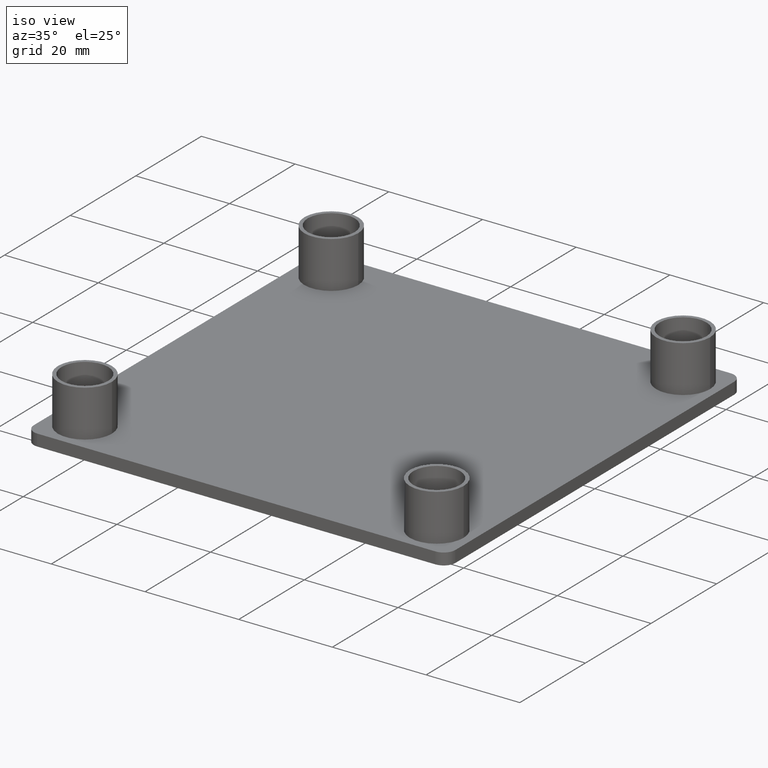
[diagram: clean part render]
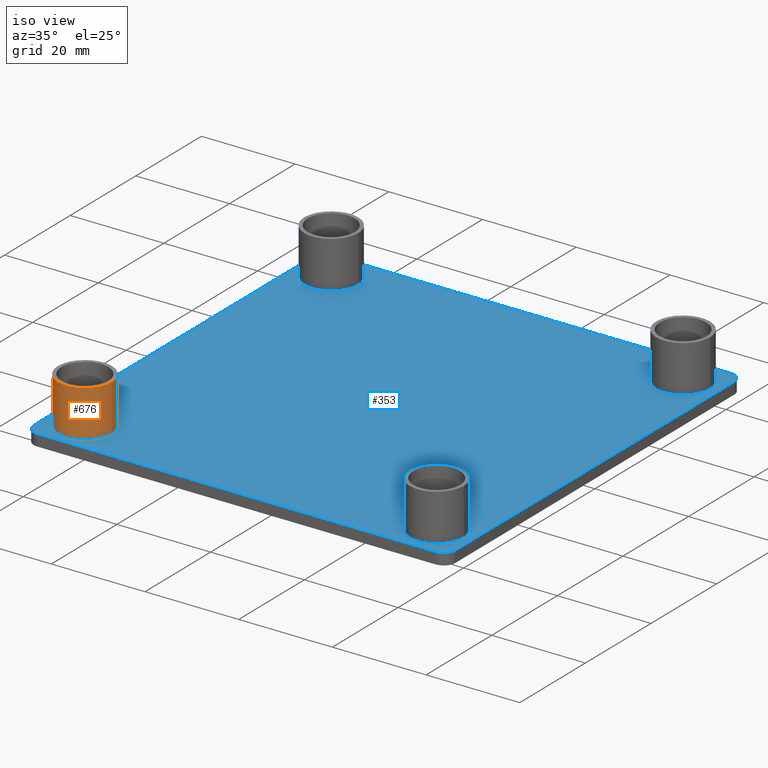
[diagram: same view with the hole feature highlighted: cylindrical wall and planar end face, labeled with their STEP entity ids]
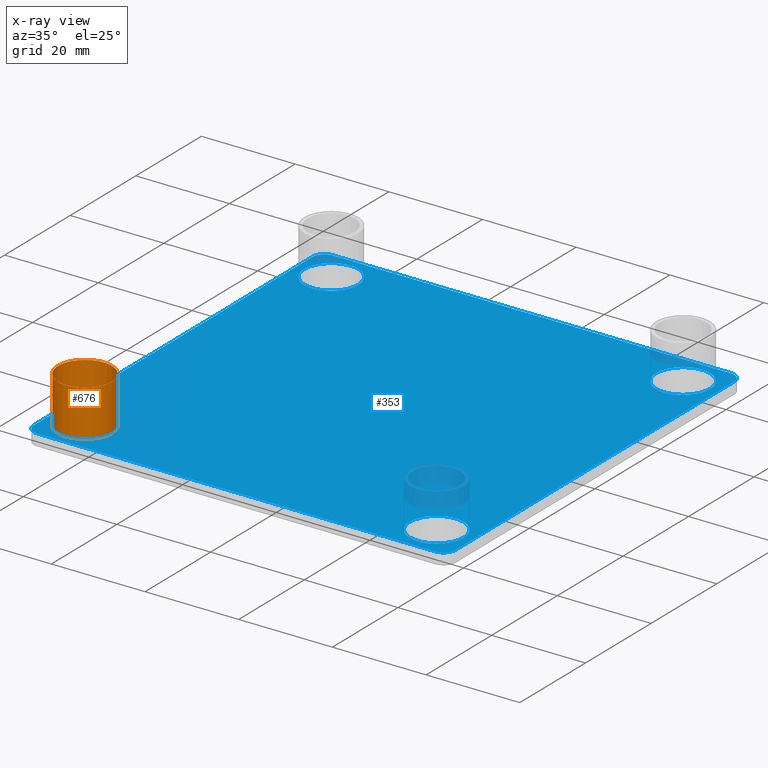
[diagram: x-ray of the same camera — body ghosted, the hole faces saturated]
A machine part, iso view. The highlighted faces form one hole feature of diameter 11.5 mm: the cylindrical wall (entity #676, orange) and its adjacent planar end face (entity #353, blue) — they share a circular edge in the B-rep.
The next image is the same camera in x-ray (body ghosted, the hole faces saturated) — the bore reads through the body.
Wall:
#313=CARTESIAN_POINT('',(-88.299999999646815,-37.550022499849547,0.0));
#314=VERTEX_POINT('',#313);
#315=CARTESIAN_POINT('',(-76.799999999692773,-37.550022499849547,0.0));
#316=VERTEX_POINT('',#315);
#317=CARTESIAN_POINT('',(-82.549999999669808,-37.550022499849547,0.0));
#318=DIRECTION('',(0.0,0.0,1.0));
#319=DIRECTION('',(1.0,0.0,0.0));
#320=AXIS2_PLACEMENT_3D('',#317,#318,#319);
#321=CIRCLE('',#320,5.749999999977001);
#322=EDGE_CURVE('',#314,#316,#321,.T.);
#324=CARTESIAN_POINT('',(-82.549999999669808,-37.550022499849547,0.0));
#325=DIRECTION('',(0.0,0.0,1.0));
#326=DIRECTION('',(1.0,0.0,0.0));
#327=AXIS2_PLACEMENT_3D('',#324,#325,#326);
#328=CIRCLE('',#327,5.749999999977001);
#329=EDGE_CURVE('',#316,#314,#328,.T.);
#642=CARTESIAN_POINT('',(-82.549999999669808,-37.550022499849547,0.0));
#643=DIRECTION('',(0.0,0.0,1.0));
#644=DIRECTION('',(1.0,0.0,0.0));
#645=AXIS2_PLACEMENT_3D('',#642,#643,#644);
#646=CYLINDRICAL_SURFACE('',#645,5.749999999977001);
#647=CARTESIAN_POINT('',(-88.299999999646815,-37.550022499849547,10.0));
#648=VERTEX_POINT('',#647);
#649=CARTESIAN_POINT('',(-76.799999999692773,-37.550022499849547,10.0));
#650=VERTEX_POINT('',#649);
#651=CARTESIAN_POINT('',(-82.549999999669808,-37.550022499849547,10.0));
#652=DIRECTION('',(0.0,0.0,1.0));
#653=DIRECTION('',(1.0,0.0,0.0));
#654=AXIS2_PLACEMENT_3D('',#651,#652,#653);
#655=CIRCLE('',#654,5.749999999977001);
#656=EDGE_CURVE('',#648,#650,#655,.T.);
#657=ORIENTED_EDGE('',*,*,#656,.F.);
#658=CARTESIAN_POINT('',(-82.549999999669808,-37.550022499849547,10.0));
#659=DIRECTION('',(0.0,0.0,1.0));
#660=DIRECTION('',(1.0,0.0,0.0));
#661=AXIS2_PLACEMENT_3D('',#658,#659,#660);
#662=CIRCLE('',#661,5.749999999977001);
#663=EDGE_CURVE('',#650,#648,#662,.T.);
#664=ORIENTED_EDGE('',*,*,#663,.F.);
#665=CARTESIAN_POINT('',(-76.799999999692773,-37.550022499849547,0.0));
#666=DIRECTION('',(0.0,0.0,1.0));
#667=VECTOR('',#666,10.0);
#668=LINE('',#665,#667);
#669=EDGE_CURVE('',#316,#650,#668,.T.);
#670=ORIENTED_EDGE('',*,*,#669,.F.);
#671=ORIENTED_EDGE('',*,*,#329,.T.);
#672=ORIENTED_EDGE('',*,*,#322,.T.);
#673=ORIENTED_EDGE('',*,*,#669,.T.);
#674=EDGE_LOOP('',(#657,#664,#670,#671,#672,#673));
#675=FACE_OUTER_BOUND('',#674,.T.);
#676=ADVANCED_FACE('',(#675),#646,.T.);
End face:
#7=CARTESIAN_POINT('',(-87.499954999650072,-44.999977499820034,0.0));
#8=VERTEX_POINT('',#7);
#25=CARTESIAN_POINT('',(-2.499999999989996,-44.999977499820034,0.0));
#26=VERTEX_POINT('',#25);
#33=CARTESIAN_POINT('',(-87.499954999650015,-44.999977499819998,0.0));
#34=DIRECTION('',(1.0,0.0,0.0));
#35=VECTOR('',#34,84.999954999660019);
#36=LINE('',#33,#35);
#37=EDGE_CURVE('',#8,#26,#36,.T.);
#57=CARTESIAN_POINT('',(0.0,-42.499977499830038,0.0));
#58=VERTEX_POINT('',#57);
#65=CARTESIAN_POINT('',(-2.499999999989996,-42.499977499830038,0.0));
#66=DIRECTION('',(0.0,0.0,1.0));
#67=DIRECTION('',(1.0,0.0,0.0));
#68=AXIS2_PLACEMENT_3D('',#65,#66,#67);
#69=CIRCLE('',#68,2.499999999990000);
#70=EDGE_CURVE('',#26,#58,#69,.T.);
#89=CARTESIAN_POINT('',(0.0,42.499977499830038,0.0));
#90=VERTEX_POINT('',#89);
#97=CARTESIAN_POINT('',(0.0,-42.499977499830038,0.0));
#98=DIRECTION('',(0.0,1.0,0.0));
#99=VECTOR('',#98,84.999954999660005);
#100=LINE('',#97,#99);
#101=EDGE_CURVE('',#58,#90,#100,.T.);
#121=CARTESIAN_POINT('',(-2.499999999989768,44.999977499820034,0.0));
#122=VERTEX_POINT('',#121);
#129=CARTESIAN_POINT('',(-2.499999999989996,42.499977499830038,0.0));
#130=DIRECTION('',(0.0,0.0,1.0));
#131=DIRECTION('',(1.0,0.0,0.0));
#132=AXIS2_PLACEMENT_3D('',#129,#130,#131);
#133=CIRCLE('',#132,2.499999999990000);
#134=EDGE_CURVE('',#90,#122,#133,.T.);
#153=CARTESIAN_POINT('',(-87.499954999649844,44.999977499820034,0.0));
#154=VERTEX_POINT('',#153);
#161=CARTESIAN_POINT('',(-2.499999999989853,44.999977499820034,0.0));
#162=DIRECTION('',(-1.0,0.0,0.0));
#163=VECTOR('',#162,84.999954999659991);
#164=LINE('',#161,#163);
#165=EDGE_CURVE('',#122,#154,#164,.T.);
#185=CARTESIAN_POINT('',(-89.999954999640067,42.499977499830038,0.0));
#186=VERTEX_POINT('',#185);
#193=CARTESIAN_POINT('',(-87.499954999649844,42.499977499830038,0.0));
#194=DIRECTION('',(0.0,0.0,1.0));
#195=DIRECTION('',(1.0,0.0,0.0));
#196=AXIS2_PLACEMENT_3D('',#193,#194,#195);
#197=CIRCLE('',#196,2.499999999990000);
#198=EDGE_CURVE('',#154,#186,#197,.T.);
#217=CARTESIAN_POINT('',(-89.999954999640067,-42.499977499830038,0.0));
#218=VERTEX_POINT('',#217);
#225=CARTESIAN_POINT('',(-89.999954999640053,42.499977499829924,0.0));
#226=DIRECTION('',(0.0,-1.0,0.0));
#227=VECTOR('',#226,84.999954999659963);
#228=LINE('',#225,#227);
#229=EDGE_CURVE('',#186,#218,#228,.T.);
#248=CARTESIAN_POINT('',(-87.499954999650072,-42.499977499830038,0.0));
#249=DIRECTION('',(0.0,0.0,1.0));
#250=DIRECTION('',(1.0,0.0,0.0));
#251=AXIS2_PLACEMENT_3D('',#248,#249,#250);
#252=CIRCLE('',#251,2.499999999990000);
#253=EDGE_CURVE('',#218,#8,#252,.T.);
#258=CARTESIAN_POINT('',(-98.999955232832463,-53.999977732792559,0.0));
#259=DIRECTION('',(0.0,0.0,1.0));
#260=DIRECTION('',(1.0,0.0,0.0));
#261=AXIS2_PLACEMENT_3D('',#258,#259,#260);
#262=PLANE('',#261);
#263=ORIENTED_EDGE('',*,*,#37,.T.);
#264=ORIENTED_EDGE('',*,*,#70,.T.);
#265=ORIENTED_EDGE('',*,*,#101,.T.);
#266=ORIENTED_EDGE('',*,*,#134,.T.);
#267=ORIENTED_EDGE('',*,*,#165,.T.);
#268=ORIENTED_EDGE('',*,*,#198,.T.);
#269=ORIENTED_EDGE('',*,*,#229,.T.);
#270=ORIENTED_EDGE('',*,*,#253,.T.);
#271=EDGE_LOOP('',(#263,#264,#265,#266,#267,#268,#269,#270));
#272=FACE_OUTER_BOUND('',#271,.T.);
#273=CARTESIAN_POINT('',(-13.199999999947259,-37.549977499849774,0.0));
#274=VERTEX_POINT('',#273);
#275=CARTESIAN_POINT('',(-1.699999999993224,-37.549977499849774,0.0));
#276=VERTEX_POINT('',#275);
#277=CARTESIAN_POINT('',(-7.449999999970260,-37.549977499849774,0.0));
#278=DIRECTION('',(0.0,0.0,1.0));
#279=DIRECTION('',(1.0,0.0,0.0));
#280=AXIS2_PLACEMENT_3D('',#277,#278,#279);
#281=CIRCLE('',#280,5.749999999977001);
#282=EDGE_CURVE('',#274,#276,#281,.T.);
#283=ORIENTED_EDGE('',*,*,#282,.F.);
#284=CARTESIAN_POINT('',(-7.449999999970260,-37.549977499849774,0.0));
#285=DIRECTION('',(0.0,0.0,1.0));
#286=DIRECTION('',(1.0,0.0,0.0));
#287=AXIS2_PLACEMENT_3D('',#284,#285,#286);
#288=CIRCLE('',#287,5.749999999977001);
#289=EDGE_CURVE('',#276,#274,#288,.T.);
#290=ORIENTED_EDGE('',*,*,#289,.F.);
#291=EDGE_LOOP('',(#283,#290));
#292=FACE_BOUND('',#291,.T.);
#293=CARTESIAN_POINT('',(-13.199999999947032,37.550022499850002,0.0));
#294=VERTEX_POINT('',#293);
#295=CARTESIAN_POINT('',(-1.699999999992997,37.550022499850002,0.0));
#296=VERTEX_POINT('',#295);
#297=CARTESIAN_POINT('',(-7.449999999970032,37.550022499850002,0.0));
#298=DIRECTION('',(0.0,0.0,1.0));
#299=DIRECTION('',(1.0,0.0,0.0));
#300=AXIS2_PLACEMENT_3D('',#297,#298,#299);
#301=CIRCLE('',#300,5.749999999977001);
#302=EDGE_CURVE('',#294,#296,#301,.T.);
#303=ORIENTED_EDGE('',*,*,#302,.F.);
#304=CARTESIAN_POINT('',(-7.449999999970032,37.550022499850002,0.0));
#305=DIRECTION('',(0.0,0.0,1.0));
#306=DIRECTION('',(1.0,0.0,0.0));
#307=AXIS2_PLACEMENT_3D('',#304,#305,#306);
#308=CIRCLE('',#307,5.749999999977001);
#309=EDGE_CURVE('',#296,#294,#308,.T.);
#310=ORIENTED_EDGE('',*,*,#309,.F.);
#311=EDGE_LOOP('',(#303,#310));
#312=FACE_BOUND('',#311,.T.);
#313=CARTESIAN_POINT('',(-88.299999999646815,-37.550022499849547,0.0));
#314=VERTEX_POINT('',#313);
#315=CARTESIAN_POINT('',(-76.799999999692773,-37.550022499849547,0.0));
#316=VERTEX_POINT('',#315);
#317=CARTESIAN_POINT('',(-82.549999999669808,-37.550022499849547,0.0));
#318=DIRECTION('',(0.0,0.0,1.0));
#319=DIRECTION('',(1.0,0.0,0.0));
#320=AXIS2_PLACEMENT_3D('',#317,#318,#319);
#321=CIRCLE('',#320,5.749999999977001);
#322=EDGE_CURVE('',#314,#316,#321,.T.);
#323=ORIENTED_EDGE('',*,*,#322,.F.);
#324=CARTESIAN_POINT('',(-82.549999999669808,-37.550022499849547,0.0));
#325=DIRECTION('',(0.0,0.0,1.0));
#326=DIRECTION('',(1.0,0.0,0.0));
#327=AXIS2_PLACEMENT_3D('',#324,#325,#326);
#328=CIRCLE('',#327,5.749999999977001);
#329=EDGE_CURVE('',#316,#314,#328,.T.);
#330=ORIENTED_EDGE('',*,*,#329,.F.);
#331=EDGE_LOOP('',(#323,#330));
#332=FACE_BOUND('',#331,.T.);
#333=CARTESIAN_POINT('',(-88.299999999646815,37.550022499850002,0.0));
#334=VERTEX_POINT('',#333);
#335=CARTESIAN_POINT('',(-76.799999999692773,37.550022499850002,0.0));
#336=VERTEX_POINT('',#335);
#337=CARTESIAN_POINT('',(-82.549999999669808,37.550022499850002,0.0));
#338=DIRECTION('',(0.0,0.0,1.0));
#339=DIRECTION('',(1.0,0.0,0.0));
#340=AXIS2_PLACEMENT_3D('',#337,#338,#339);
#341=CIRCLE('',#340,5.749999999977001);
#342=EDGE_CURVE('',#334,#336,#341,.T.);
#343=ORIENTED_EDGE('',*,*,#342,.F.);
#344=CARTESIAN_POINT('',(-82.549999999669808,37.550022499850002,0.0));
#345=DIRECTION('',(0.0,0.0,1.0));
#346=DIRECTION('',(1.0,0.0,0.0));
#347=AXIS2_PLACEMENT_3D('',#344,#345,#346);
#348=CIRCLE('',#347,5.749999999977001);
#349=EDGE_CURVE('',#336,#334,#348,.T.);
#350=ORIENTED_EDGE('',*,*,#349,.F.);
#351=EDGE_LOOP('',(#343,#350));
#352=FACE_BOUND('',#351,.T.);
#353=ADVANCED_FACE('',(#272,#292,#312,#332,#352),#262,.T.);